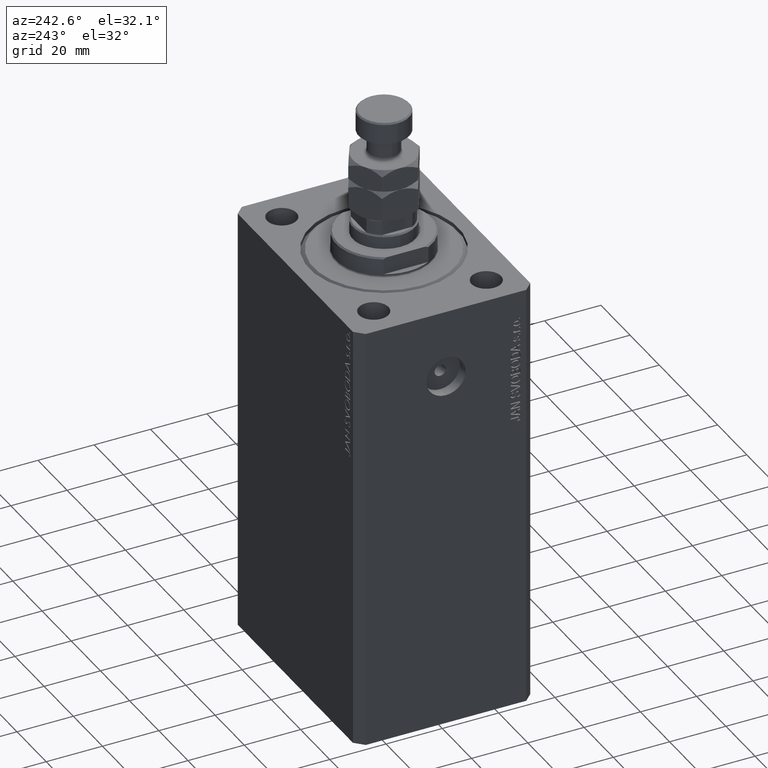
[diagram: clean part render]
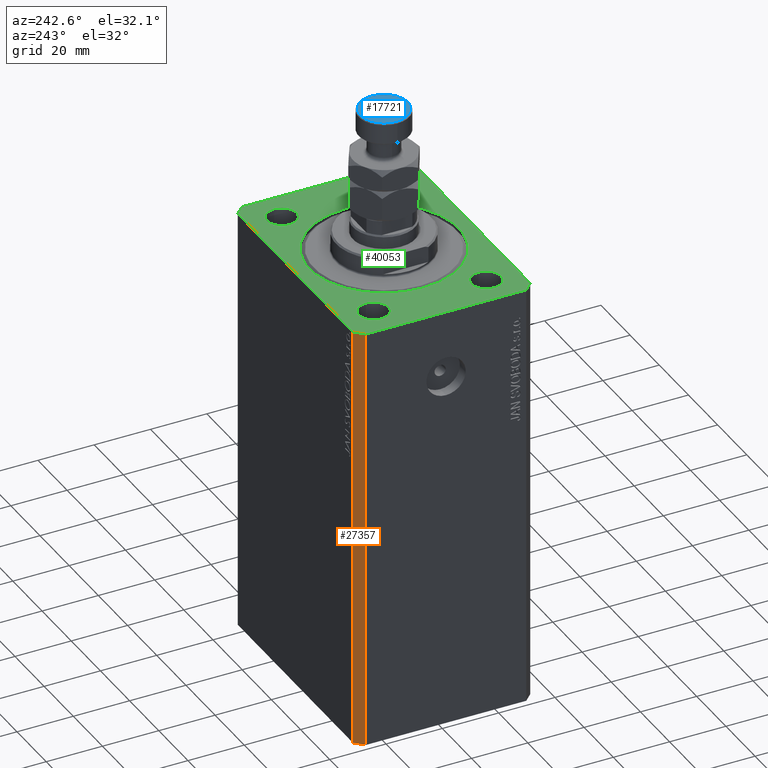
[diagram: same view with three faces highlighted in distinct colors, each labeled with its STEP entity id]
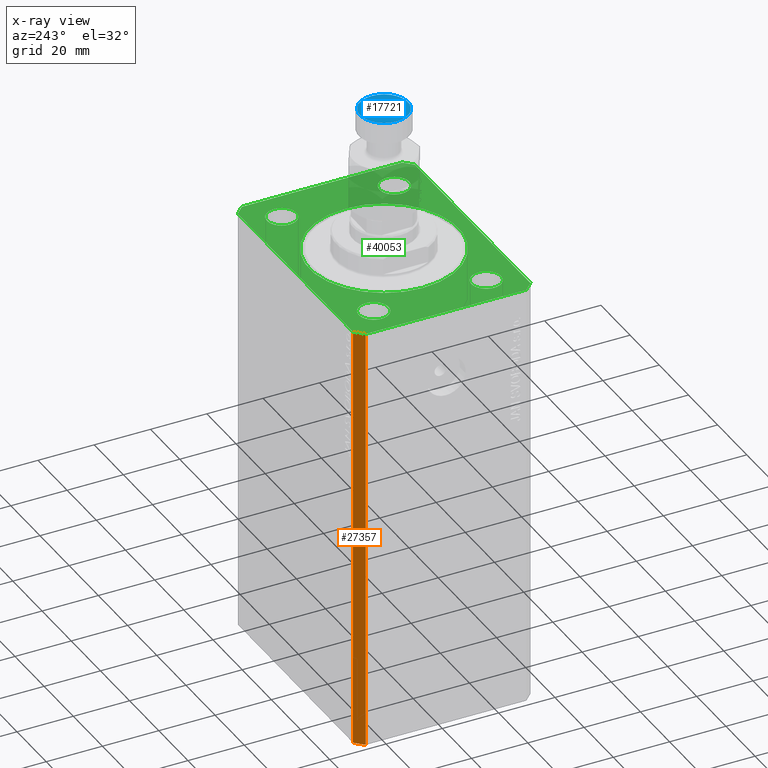
[diagram: x-ray of the same camera — body ghosted, the three highlighted faces saturated]
A machine part, auxiliary view with three faces highlighted in distinct colors.
The next image is the same camera in x-ray (body ghosted, the three faces saturated) — at least one of them is partly hidden behind the body in this view.
Their STEP definitions:

[orange] entity #27357 — the highlighted planar face has unit normal (-0.7071, 0.7071, 0).
#688 = VERTEX_POINT ( 'NONE', #40338 ) ;
#920 = ORIENTED_EDGE ( 'NONE', *, *, #3257, .F. ) ;
#1787 = FACE_OUTER_BOUND ( 'NONE', #8443, .T. ) ;
#3246 = VECTOR ( 'NONE', #24730, 1000.000000000000000 ) ;
#3257 = EDGE_CURVE ( 'NONE', #34308, #688, #25418, .T. ) ;
#4617 = VERTEX_POINT ( 'NONE', #15006 ) ;
#5056 = DIRECTION ( 'NONE',  ( -0.7071067811865479058, 0.7071067811865471286, 0.000000000000000000 ) ) ;
#6108 = LINE ( 'NONE', #35104, #38522 ) ;
#7547 = CARTESIAN_POINT ( 'NONE',  ( -42.50000000000000000, 28.50000000000000000, 0.000000000000000000 ) ) ;
#8443 = EDGE_LOOP ( 'NONE', ( #33524, #920, #20469, #35812 ) ) ;
#11664 = EDGE_CURVE ( 'NONE', #4617, #28593, #6108, .T. ) ;
#13412 = VECTOR ( 'NONE', #40659, 1000.000000000000000 ) ;
#14418 = CARTESIAN_POINT ( 'NONE',  ( -39.50000000000000711, 31.50000000000000000, -153.0000000000000000 ) ) ;
#15006 = CARTESIAN_POINT ( 'NONE',  ( -42.50000000000000000, 28.50000000000000000, -153.0000000000000000 ) ) ;
#15355 = DIRECTION ( 'NONE',  ( -0.7071067811865471286, -0.7071067811865479058, 0.000000000000000000 ) ) ;
#15386 = CARTESIAN_POINT ( 'NONE',  ( -39.50000000000000711, 31.50000000000000000, -153.0000000000000000 ) ) ;
#15580 = PLANE ( 'NONE',  #34333 ) ;
#20469 = ORIENTED_EDGE ( 'NONE', *, *, #24482, .T. ) ;
#24343 = CARTESIAN_POINT ( 'NONE',  ( -39.50000000000000711, 31.50000000000000000, -153.0000000000000000 ) ) ;
#24482 = EDGE_CURVE ( 'NONE', #34308, #4617, #33879, .T. ) ;
#24730 = DIRECTION ( 'NONE',  ( 0.000000000000000000, 0.000000000000000000, 1.000000000000000000 ) ) ;
#25082 = LINE ( 'NONE', #28381, #33839 ) ;
#25418 = LINE ( 'NONE', #14418, #3246 ) ;
#27357 = ADVANCED_FACE ( 'NONE', ( #1787 ), #15580, .T. ) ;
#28381 = CARTESIAN_POINT ( 'NONE',  ( -39.50000000000000711, 31.50000000000000000, 0.000000000000000000 ) ) ;
#28593 = VERTEX_POINT ( 'NONE', #7547 ) ;
#31133 = DIRECTION ( 'NONE',  ( 0.000000000000000000, 0.000000000000000000, 1.000000000000000000 ) ) ;
#33403 = EDGE_CURVE ( 'NONE', #688, #28593, #25082, .T. ) ;
#33524 = ORIENTED_EDGE ( 'NONE', *, *, #33403, .F. ) ;
#33839 = VECTOR ( 'NONE', #42651, 1000.000000000000000 ) ;
#33879 = LINE ( 'NONE', #15386, #13412 ) ;
#34308 = VERTEX_POINT ( 'NONE', #24343 ) ;
#34333 = AXIS2_PLACEMENT_3D ( 'NONE', #37357, #5056, #15355 ) ;
#35104 = CARTESIAN_POINT ( 'NONE',  ( -42.50000000000000000, 28.50000000000000000, -153.0000000000000000 ) ) ;
#35812 = ORIENTED_EDGE ( 'NONE', *, *, #11664, .T. ) ;
#37357 = CARTESIAN_POINT ( 'NONE',  ( -39.50000000000000711, 31.50000000000000000, -153.0000000000000000 ) ) ;
#38522 = VECTOR ( 'NONE', #31133, 1000.000000000000000 ) ;
#40338 = CARTESIAN_POINT ( 'NONE',  ( -39.50000000000000711, 31.50000000000000000, 0.000000000000000000 ) ) ;
#40659 = DIRECTION ( 'NONE',  ( -0.7071067811865471286, -0.7071067811865479058, 0.000000000000000000 ) ) ;
#42651 = DIRECTION ( 'NONE',  ( -0.7071067811865471286, -0.7071067811865479058, 0.000000000000000000 ) ) ;

[blue] entity #17721 — the highlighted planar face has unit normal (0, 0, 1).
#2414 = EDGE_CURVE ( 'NONE', #3462, #12111, #39856, .T. ) ;
#3010 = DIRECTION ( 'NONE',  ( 0.000000000000000000, 0.000000000000000000, 1.000000000000000000 ) ) ;
#3462 = VERTEX_POINT ( 'NONE', #33132 ) ;
#3535 = AXIS2_PLACEMENT_3D ( 'NONE', #12787, #12086, #23079 ) ;
#7742 = EDGE_LOOP ( 'NONE', ( #42106, #39040 ) ) ;
#9895 = CARTESIAN_POINT ( 'NONE',  ( 8.499999999999992895, 1.071565949253933532E-15, 35.00000000000000000 ) ) ;
#11401 = FACE_OUTER_BOUND ( 'NONE', #7742, .T. ) ;
#12086 = DIRECTION ( 'NONE',  ( 0.000000000000000000, 0.000000000000000000, 1.000000000000000000 ) ) ;
#12111 = VERTEX_POINT ( 'NONE', #9895 ) ;
#12787 = CARTESIAN_POINT ( 'NONE',  ( 0.000000000000000000, 0.000000000000000000, 35.00000000000000000 ) ) ;
#13637 = DIRECTION ( 'NONE',  ( 1.000000000000000000, 0.000000000000000000, 0.000000000000000000 ) ) ;
#14914 = PLANE ( 'NONE',  #3535 ) ;
#17385 = DIRECTION ( 'NONE',  ( 0.000000000000000000, 0.000000000000000000, 1.000000000000000000 ) ) ;
#17721 = ADVANCED_FACE ( 'NONE', ( #11401 ), #14914, .T. ) ;
#23079 = DIRECTION ( 'NONE',  ( 1.000000000000000000, 0.000000000000000000, -0.000000000000000000 ) ) ;
#27581 = DIRECTION ( 'NONE',  ( 1.000000000000000000, 0.000000000000000000, 0.000000000000000000 ) ) ;
#28014 = EDGE_CURVE ( 'NONE', #12111, #3462, #42545, .T. ) ;
#33132 = CARTESIAN_POINT ( 'NONE',  ( -8.499999999999992895, 0.000000000000000000, 35.00000000000000000 ) ) ;
#35061 = CARTESIAN_POINT ( 'NONE',  ( 0.000000000000000000, 0.000000000000000000, 35.00000000000000000 ) ) ;
#35093 = AXIS2_PLACEMENT_3D ( 'NONE', #35061, #3010, #27581 ) ;
#39040 = ORIENTED_EDGE ( 'NONE', *, *, #28014, .T. ) ;
#39856 = CIRCLE ( 'NONE', #43582, 8.499999999999992895 ) ;
#42106 = ORIENTED_EDGE ( 'NONE', *, *, #2414, .T. ) ;
#42545 = CIRCLE ( 'NONE', #35093, 8.499999999999992895 ) ;
#43582 = AXIS2_PLACEMENT_3D ( 'NONE', #45699, #17385, #13637 ) ;
#45699 = CARTESIAN_POINT ( 'NONE',  ( 0.000000000000000000, 0.000000000000000000, 35.00000000000000000 ) ) ;

[green] entity #40053 — the highlighted planar face has unit normal (0, 0, 1).
#102 = DIRECTION ( 'NONE',  ( 1.000000000000000000, 0.000000000000000000, 0.000000000000000000 ) ) ;
#563 = CARTESIAN_POINT ( 'NONE',  ( -31.49999999999999289, -20.00000000000000355, 0.000000000000000000 ) ) ;
#688 = VERTEX_POINT ( 'NONE', #40338 ) ;
#796 = VECTOR ( 'NONE', #4747, 1000.000000000000000 ) ;
#2877 = CARTESIAN_POINT ( 'NONE',  ( 36.74999999999999289, -20.00000000000000355, 0.000000000000000000 ) ) ;
#3231 = ORIENTED_EDGE ( 'NONE', *, *, #19424, .T. ) ;
#3408 = VECTOR ( 'NONE', #27924, 1000.000000000000114 ) ;
#3502 = CARTESIAN_POINT ( 'NONE',  ( 36.75000000000000000, 19.99999999999999289, 0.000000000000000000 ) ) ;
#3557 = ORIENTED_EDGE ( 'NONE', *, *, #33403, .T. ) ;
#3573 = EDGE_CURVE ( 'NONE', #18706, #28670, #12235, .T. ) ;
#3595 = CARTESIAN_POINT ( 'NONE',  ( -31.49999999999999289, -20.00000000000000355, 0.000000000000000000 ) ) ;
#3742 = CARTESIAN_POINT ( 'NONE',  ( 0.000000000000000000, 0.000000000000000000, 0.000000000000000000 ) ) ;
#3761 = AXIS2_PLACEMENT_3D ( 'NONE', #34680, #31169, #38211 ) ;
#3799 = AXIS2_PLACEMENT_3D ( 'NONE', #20867, #35153, #37746 ) ;
#3834 = CARTESIAN_POINT ( 'NONE',  ( 31.50000000000000000, 19.99999999999999289, 0.000000000000000000 ) ) ;
#3981 = ORIENTED_EDGE ( 'NONE', *, *, #9397, .F. ) ;
#4284 = EDGE_CURVE ( 'NONE', #12035, #44927, #37867, .T. ) ;
#4638 = CARTESIAN_POINT ( 'NONE',  ( 39.50000000000000711, -31.50000000000000000, 0.000000000000000000 ) ) ;
#4744 = DIRECTION ( 'NONE',  ( 0.000000000000000000, 0.000000000000000000, 1.000000000000000000 ) ) ;
#4747 = DIRECTION ( 'NONE',  ( 0.000000000000000000, -1.000000000000000000, 0.000000000000000000 ) ) ;
#4782 = VERTEX_POINT ( 'NONE', #3502 ) ;
#5570 = CARTESIAN_POINT ( 'NONE',  ( 42.50000000000000711, -28.50000000000000355, 0.000000000000000000 ) ) ;
#5819 = LINE ( 'NONE', #9095, #17011 ) ;
#6113 = PLANE ( 'NONE',  #23796 ) ;
#6192 = EDGE_LOOP ( 'NONE', ( #43675, #3557, #43516, #7422, #12774, #3231, #18695, #25655 ) ) ;
#6312 = CIRCLE ( 'NONE', #21964, 5.249999999999997335 ) ;
#6337 = FACE_BOUND ( 'NONE', #13274, .T. ) ;
#6344 = VERTEX_POINT ( 'NONE', #42248 ) ;
#6580 = DIRECTION ( 'NONE',  ( 1.000000000000000000, 0.000000000000000000, 0.000000000000000000 ) ) ;
#7110 = DIRECTION ( 'NONE',  ( 0.000000000000000000, 0.000000000000000000, 1.000000000000000000 ) ) ;
#7422 = ORIENTED_EDGE ( 'NONE', *, *, #45219, .T. ) ;
#7547 = CARTESIAN_POINT ( 'NONE',  ( -42.50000000000000000, 28.50000000000000000, 0.000000000000000000 ) ) ;
#7815 = CARTESIAN_POINT ( 'NONE',  ( 42.50000000000000711, -28.50000000000000355, 0.000000000000000000 ) ) ;
#8602 = EDGE_CURVE ( 'NONE', #41715, #19141, #6312, .T. ) ;
#8848 = DIRECTION ( 'NONE',  ( 0.7071067811865483499, 0.7071067811865466846, 0.000000000000000000 ) ) ;
#9095 = CARTESIAN_POINT ( 'NONE',  ( 39.50000000000000711, -31.50000000000000000, 0.000000000000000000 ) ) ;
#9110 = EDGE_CURVE ( 'NONE', #28670, #18706, #27958, .T. ) ;
#9241 = AXIS2_PLACEMENT_3D ( 'NONE', #563, #7110, #17640 ) ;
#9276 = AXIS2_PLACEMENT_3D ( 'NONE', #32087, #38644, #20392 ) ;
#9371 = FACE_BOUND ( 'NONE', #41821, .T. ) ;
#9397 = EDGE_CURVE ( 'NONE', #6344, #27764, #29458, .T. ) ;
#9535 = ORIENTED_EDGE ( 'NONE', *, *, #8602, .F. ) ;
#10354 = LINE ( 'NONE', #32580, #3408 ) ;
#10529 = AXIS2_PLACEMENT_3D ( 'NONE', #29042, #11247, #11473 ) ;
#10609 = DIRECTION ( 'NONE',  ( 1.000000000000000000, 0.000000000000000000, 0.000000000000000000 ) ) ;
#10772 = LINE ( 'NONE', #39564, #17961 ) ;
#11247 = DIRECTION ( 'NONE',  ( 0.000000000000000000, 0.000000000000000000, 1.000000000000000000 ) ) ;
#11273 = CARTESIAN_POINT ( 'NONE',  ( 39.50000000000056843, 31.50000000000000000, 0.000000000000000000 ) ) ;
#11473 = DIRECTION ( 'NONE',  ( 1.000000000000000000, 0.000000000000000000, 0.000000000000000000 ) ) ;
#11499 = DIRECTION ( 'NONE',  ( -1.000000000000000000, 0.000000000000000000, 0.000000000000000000 ) ) ;
#11782 = VERTEX_POINT ( 'NONE', #33372 ) ;
#11993 = CIRCLE ( 'NONE', #10529, 5.249999999999997335 ) ;
#12035 = VERTEX_POINT ( 'NONE', #7815 ) ;
#12147 = CARTESIAN_POINT ( 'NONE',  ( 0.000000000000000000, 0.000000000000000000, 0.000000000000000000 ) ) ;
#12235 = CIRCLE ( 'NONE', #9241, 5.250000000000000888 ) ;
#12383 = EDGE_CURVE ( 'NONE', #39940, #688, #43559, .T. ) ;
#12644 = CARTESIAN_POINT ( 'NONE',  ( 39.50000000000056843, 31.50000000000000000, 0.000000000000000000 ) ) ;
#12774 = ORIENTED_EDGE ( 'NONE', *, *, #29619, .T. ) ;
#13042 = DIRECTION ( 'NONE',  ( 8.886653596232072440E-15, 1.000000000000000000, 0.000000000000000000 ) ) ;
#13170 = EDGE_CURVE ( 'NONE', #44927, #39940, #10354, .T. ) ;
#13274 = EDGE_LOOP ( 'NONE', ( #3981, #16405 ) ) ;
#13879 = DIRECTION ( 'NONE',  ( 0.000000000000000000, 0.000000000000000000, 1.000000000000000000 ) ) ;
#14920 = CARTESIAN_POINT ( 'NONE',  ( -36.74999999999999289, -20.00000000000000355, 0.000000000000000000 ) ) ;
#14928 = CARTESIAN_POINT ( 'NONE',  ( -26.50000000000000355, 3.245314017740486554E-15, 0.000000000000000000 ) ) ;
#16404 = CARTESIAN_POINT ( 'NONE',  ( -26.24999999999999289, -20.00000000000000355, 0.000000000000000000 ) ) ;
#16405 = ORIENTED_EDGE ( 'NONE', *, *, #45039, .F. ) ;
#16645 = DIRECTION ( 'NONE',  ( 0.000000000000000000, 0.000000000000000000, 1.000000000000000000 ) ) ;
#16678 = CARTESIAN_POINT ( 'NONE',  ( -39.50000000000000711, -31.50000000000000000, 0.000000000000000000 ) ) ;
#17011 = VECTOR ( 'NONE', #8848, 1000.000000000000000 ) ;
#17640 = DIRECTION ( 'NONE',  ( 1.000000000000000000, 0.000000000000000000, 0.000000000000000000 ) ) ;
#17960 = CIRCLE ( 'NONE', #3761, 5.250000000000000888 ) ;
#17961 = VECTOR ( 'NONE', #35359, 1000.000000000000000 ) ;
#18048 = LINE ( 'NONE', #25523, #38915 ) ;
#18695 = ORIENTED_EDGE ( 'NONE', *, *, #4284, .T. ) ;
#18706 = VERTEX_POINT ( 'NONE', #14920 ) ;
#19141 = VERTEX_POINT ( 'NONE', #2877 ) ;
#19424 = EDGE_CURVE ( 'NONE', #37699, #12035, #5819, .T. ) ;
#20390 = VERTEX_POINT ( 'NONE', #27065 ) ;
#20392 = DIRECTION ( 'NONE',  ( 1.000000000000000000, 0.000000000000000000, 0.000000000000000000 ) ) ;
#20471 = VECTOR ( 'NONE', #13042, 1000.000000000000000 ) ;
#20597 = FACE_BOUND ( 'NONE', #39989, .T. ) ;
#20867 = CARTESIAN_POINT ( 'NONE',  ( 0.000000000000000000, 0.000000000000000000, 0.000000000000000000 ) ) ;
#21229 = ORIENTED_EDGE ( 'NONE', *, *, #30033, .F. ) ;
#21964 = AXIS2_PLACEMENT_3D ( 'NONE', #22520, #4744, #23205 ) ;
#22520 = CARTESIAN_POINT ( 'NONE',  ( 31.49999999999999289, -20.00000000000000355, 0.000000000000000000 ) ) ;
#22911 = DIRECTION ( 'NONE',  ( 1.000000000000000000, 0.000000000000000000, 0.000000000000000000 ) ) ;
#23205 = DIRECTION ( 'NONE',  ( 1.000000000000000000, 0.000000000000000000, 0.000000000000000000 ) ) ;
#23649 = FACE_BOUND ( 'NONE', #36723, .T. ) ;
#23796 = AXIS2_PLACEMENT_3D ( 'NONE', #3742, #36268, #31828 ) ;
#24188 = EDGE_LOOP ( 'NONE', ( #30161, #28559 ) ) ;
#25082 = LINE ( 'NONE', #28381, #33839 ) ;
#25332 = AXIS2_PLACEMENT_3D ( 'NONE', #12147, #26421, #22911 ) ;
#25523 = CARTESIAN_POINT ( 'NONE',  ( -42.50000000000000000, -28.50000000000000000, 0.000000000000000000 ) ) ;
#25655 = ORIENTED_EDGE ( 'NONE', *, *, #13170, .T. ) ;
#26166 = AXIS2_PLACEMENT_3D ( 'NONE', #3834, #32154, #102 ) ;
#26167 = ORIENTED_EDGE ( 'NONE', *, *, #3573, .F. ) ;
#26421 = DIRECTION ( 'NONE',  ( 0.000000000000000000, 0.000000000000000000, 1.000000000000000000 ) ) ;
#26434 = CARTESIAN_POINT ( 'NONE',  ( 26.24999999999999645, -20.00000000000000355, 0.000000000000000000 ) ) ;
#26645 = EDGE_CURVE ( 'NONE', #37871, #30489, #41781, .T. ) ;
#27065 = CARTESIAN_POINT ( 'NONE',  ( 26.25000000000000355, 19.99999999999999289, 0.000000000000000000 ) ) ;
#27764 = VERTEX_POINT ( 'NONE', #32129 ) ;
#27924 = DIRECTION ( 'NONE',  ( -0.7071067811865356934, 0.7071067811865594521, 0.000000000000000000 ) ) ;
#27958 = CIRCLE ( 'NONE', #33929, 5.250000000000000888 ) ;
#28381 = CARTESIAN_POINT ( 'NONE',  ( -39.50000000000000711, 31.50000000000000000, 0.000000000000000000 ) ) ;
#28559 = ORIENTED_EDGE ( 'NONE', *, *, #45830, .F. ) ;
#28593 = VERTEX_POINT ( 'NONE', #7547 ) ;
#28670 = VERTEX_POINT ( 'NONE', #16404 ) ;
#29042 = CARTESIAN_POINT ( 'NONE',  ( 31.49999999999999289, -20.00000000000000355, 0.000000000000000000 ) ) ;
#29458 = CIRCLE ( 'NONE', #9276, 5.250000000000000888 ) ;
#29509 = EDGE_CURVE ( 'NONE', #4782, #20390, #33657, .T. ) ;
#29619 = EDGE_CURVE ( 'NONE', #39769, #37699, #10772, .T. ) ;
#30033 = EDGE_CURVE ( 'NONE', #20390, #4782, #32932, .T. ) ;
#30086 = EDGE_CURVE ( 'NONE', #28593, #11782, #30466, .T. ) ;
#30161 = ORIENTED_EDGE ( 'NONE', *, *, #26645, .F. ) ;
#30466 = LINE ( 'NONE', #40540, #796 ) ;
#30489 = VERTEX_POINT ( 'NONE', #14928 ) ;
#30930 = EDGE_CURVE ( 'NONE', #19141, #41715, #11993, .T. ) ;
#31158 = ORIENTED_EDGE ( 'NONE', *, *, #9110, .F. ) ;
#31169 = DIRECTION ( 'NONE',  ( 0.000000000000000000, 0.000000000000000000, 1.000000000000000000 ) ) ;
#31474 = CARTESIAN_POINT ( 'NONE',  ( 26.50000000000000355, 0.000000000000000000, 0.000000000000000000 ) ) ;
#31828 = DIRECTION ( 'NONE',  ( 1.000000000000000000, 0.000000000000000000, -0.000000000000000000 ) ) ;
#32087 = CARTESIAN_POINT ( 'NONE',  ( -31.50000000000000000, 19.99999999999999645, 0.000000000000000000 ) ) ;
#32129 = CARTESIAN_POINT ( 'NONE',  ( -36.75000000000000000, 19.99999999999999645, 0.000000000000000000 ) ) ;
#32154 = DIRECTION ( 'NONE',  ( 0.000000000000000000, 0.000000000000000000, 1.000000000000000000 ) ) ;
#32580 = CARTESIAN_POINT ( 'NONE',  ( 42.50000000000051870, 28.49999999999995381, 0.000000000000000000 ) ) ;
#32613 = ORIENTED_EDGE ( 'NONE', *, *, #30930, .F. ) ;
#32932 = CIRCLE ( 'NONE', #26166, 5.249999999999997335 ) ;
#32959 = CIRCLE ( 'NONE', #3799, 26.50000000000000355 ) ;
#33372 = CARTESIAN_POINT ( 'NONE',  ( -42.50000000000000000, -28.50000000000000000, 0.000000000000000000 ) ) ;
#33403 = EDGE_CURVE ( 'NONE', #688, #28593, #25082, .T. ) ;
#33657 = CIRCLE ( 'NONE', #35167, 5.249999999999997335 ) ;
#33839 = VECTOR ( 'NONE', #42651, 1000.000000000000000 ) ;
#33929 = AXIS2_PLACEMENT_3D ( 'NONE', #3595, #13879, #10609 ) ;
#34052 = ORIENTED_EDGE ( 'NONE', *, *, #29509, .F. ) ;
#34680 = CARTESIAN_POINT ( 'NONE',  ( -31.50000000000000000, 19.99999999999999645, 0.000000000000000000 ) ) ;
#35153 = DIRECTION ( 'NONE',  ( 0.000000000000000000, 0.000000000000000000, 1.000000000000000000 ) ) ;
#35167 = AXIS2_PLACEMENT_3D ( 'NONE', #38640, #16645, #6580 ) ;
#35359 = DIRECTION ( 'NONE',  ( 1.000000000000000000, 0.000000000000000000, 0.000000000000000000 ) ) ;
#36268 = DIRECTION ( 'NONE',  ( 0.000000000000000000, 0.000000000000000000, 1.000000000000000000 ) ) ;
#36723 = EDGE_LOOP ( 'NONE', ( #34052, #21229 ) ) ;
#37699 = VERTEX_POINT ( 'NONE', #4638 ) ;
#37746 = DIRECTION ( 'NONE',  ( 1.000000000000000000, 0.000000000000000000, 0.000000000000000000 ) ) ;
#37867 = LINE ( 'NONE', #5570, #20471 ) ;
#37871 = VERTEX_POINT ( 'NONE', #31474 ) ;
#38179 = FACE_OUTER_BOUND ( 'NONE', #6192, .T. ) ;
#38211 = DIRECTION ( 'NONE',  ( 1.000000000000000000, 0.000000000000000000, 0.000000000000000000 ) ) ;
#38640 = CARTESIAN_POINT ( 'NONE',  ( 31.50000000000000000, 19.99999999999999289, 0.000000000000000000 ) ) ;
#38644 = DIRECTION ( 'NONE',  ( 0.000000000000000000, 0.000000000000000000, 1.000000000000000000 ) ) ;
#38915 = VECTOR ( 'NONE', #39804, 1000.000000000000000 ) ;
#39564 = CARTESIAN_POINT ( 'NONE',  ( -39.50000000000000711, -31.50000000000000000, 0.000000000000000000 ) ) ;
#39769 = VERTEX_POINT ( 'NONE', #16678 ) ;
#39804 = DIRECTION ( 'NONE',  ( 0.7071067811865471286, -0.7071067811865479058, 0.000000000000000000 ) ) ;
#39940 = VERTEX_POINT ( 'NONE', #12644 ) ;
#39989 = EDGE_LOOP ( 'NONE', ( #31158, #26167 ) ) ;
#40053 = ADVANCED_FACE ( 'NONE', ( #44940, #20597, #9371, #23649, #6337, #38179 ), #6113, .T. ) ;
#40338 = CARTESIAN_POINT ( 'NONE',  ( -39.50000000000000711, 31.50000000000000000, 0.000000000000000000 ) ) ;
#40540 = CARTESIAN_POINT ( 'NONE',  ( -42.50000000000000000, 28.50000000000000000, 0.000000000000000000 ) ) ;
#40545 = CARTESIAN_POINT ( 'NONE',  ( 42.50000000000051870, 28.49999999999995381, 0.000000000000000000 ) ) ;
#41715 = VERTEX_POINT ( 'NONE', #26434 ) ;
#41781 = CIRCLE ( 'NONE', #25332, 26.50000000000000355 ) ;
#41821 = EDGE_LOOP ( 'NONE', ( #32613, #9535 ) ) ;
#42248 = CARTESIAN_POINT ( 'NONE',  ( -26.25000000000000000, 19.99999999999999645, 0.000000000000000000 ) ) ;
#42651 = DIRECTION ( 'NONE',  ( -0.7071067811865471286, -0.7071067811865479058, 0.000000000000000000 ) ) ;
#43516 = ORIENTED_EDGE ( 'NONE', *, *, #30086, .T. ) ;
#43559 = LINE ( 'NONE', #11273, #44468 ) ;
#43675 = ORIENTED_EDGE ( 'NONE', *, *, #12383, .T. ) ;
#44468 = VECTOR ( 'NONE', #11499, 1000.000000000000000 ) ;
#44927 = VERTEX_POINT ( 'NONE', #40545 ) ;
#44940 = FACE_BOUND ( 'NONE', #24188, .T. ) ;
#45039 = EDGE_CURVE ( 'NONE', #27764, #6344, #17960, .T. ) ;
#45219 = EDGE_CURVE ( 'NONE', #11782, #39769, #18048, .T. ) ;
#45830 = EDGE_CURVE ( 'NONE', #30489, #37871, #32959, .T. ) ;